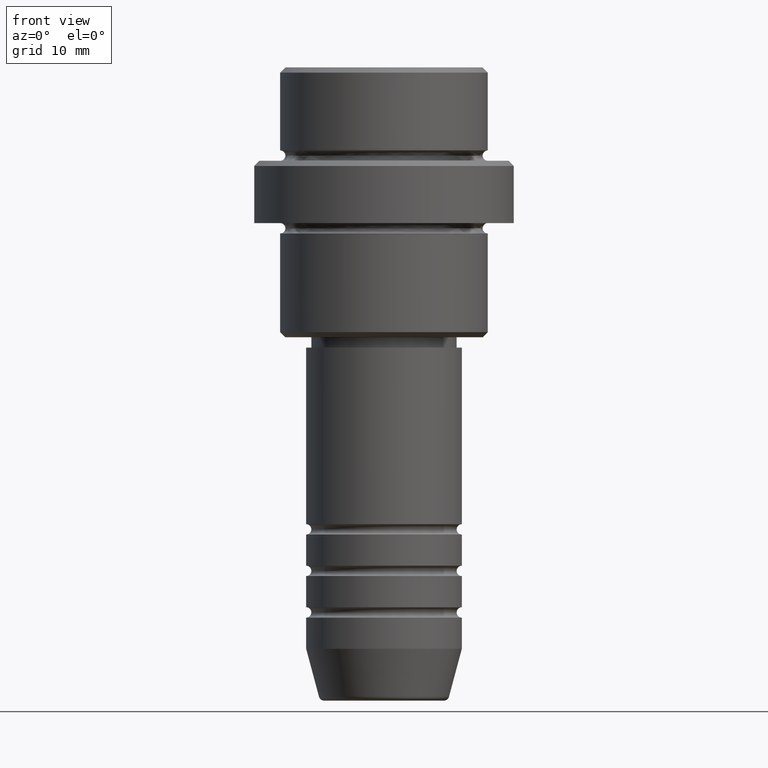
[diagram: clean part render]
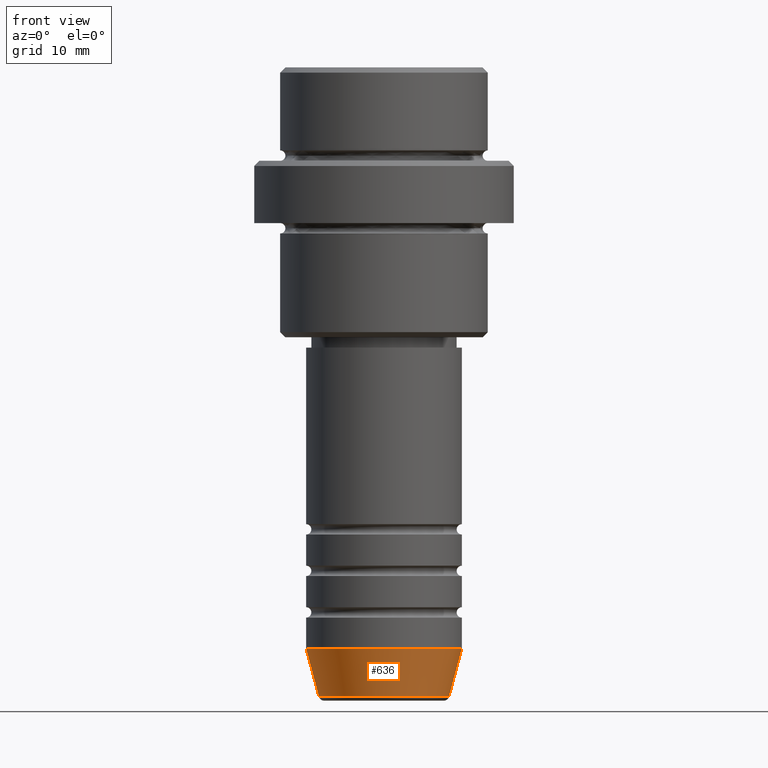
[diagram: same view with one face highlighted and labeled with its STEP entity id]
A machine part, front view. The second image highlights one B-rep face of the part: STEP entity #636.
In plain terms, the highlighted conical surface has half-angle 15 deg.
Its self-contained STEP definition (entity closure, byte-faithful):
#31 = DIRECTION ( 'NONE',  ( 1.000000000000000000, 0.000000000000000000, 0.000000000000000000 ) ) ;
#68 = CARTESIAN_POINT ( 'NONE',  ( 0.000000000000000000, 0.000000000000000000, -56.00000000000000711 ) ) ;
#124 = DIRECTION ( 'NONE',  ( 1.000000000000000000, 0.000000000000000000, 0.000000000000000000 ) ) ;
#140 = CARTESIAN_POINT ( 'NONE',  ( 7.500000000000000000, 0.000000000000000000, -56.00000000000000711 ) ) ;
#229 = CARTESIAN_POINT ( 'NONE',  ( 0.000000000000000000, 0.000000000000000000, -56.00000000000000711 ) ) ;
#236 = EDGE_CURVE ( 'NONE', #333, #776, #328, .T. ) ;
#265 = VECTOR ( 'NONE', #568, 1000.000000000000000 ) ;
#315 = ORIENTED_EDGE ( 'NONE', *, *, #236, .F. ) ;
#328 = LINE ( 'NONE', #641, #1177 ) ;
#333 = VERTEX_POINT ( 'NONE', #1373 ) ;
#351 = AXIS2_PLACEMENT_3D ( 'NONE', #1228, #895, #31 ) ;
#360 = EDGE_LOOP ( 'NONE', ( #315, #1313, #664, #1348 ) ) ;
#415 = CARTESIAN_POINT ( 'NONE',  ( 7.500000000000000000, 0.000000000000000000, -56.00000000000000711 ) ) ;
#435 = CONICAL_SURFACE ( 'NONE', #1179, 7.500000000000000000, 0.2617993877991500740 ) ;
#438 = AXIS2_PLACEMENT_3D ( 'NONE', #68, #510, #1380 ) ;
#478 = CIRCLE ( 'NONE', #351, 6.259553456999435106 ) ;
#510 = DIRECTION ( 'NONE',  ( -0.000000000000000000, -0.000000000000000000, 1.000000000000000000 ) ) ;
#568 = DIRECTION ( 'NONE',  ( 0.2588190451025213501, 0.000000000000000000, 0.9659258262890680902 ) ) ;
#636 = ADVANCED_FACE ( 'NONE', ( #1201 ), #435, .T. ) ;
#641 = CARTESIAN_POINT ( 'NONE',  ( -7.500000000000000000, 9.184850993605147944E-16, -56.00000000000000711 ) ) ;
#658 = DIRECTION ( 'NONE',  ( -0.000000000000000000, -0.000000000000000000, 1.000000000000000000 ) ) ;
#664 = ORIENTED_EDGE ( 'NONE', *, *, #784, .T. ) ;
#749 = CIRCLE ( 'NONE', #438, 7.500000000000000000 ) ;
#776 = VERTEX_POINT ( 'NONE', #818 ) ;
#784 = EDGE_CURVE ( 'NONE', #1216, #1001, #1306, .T. ) ;
#818 = CARTESIAN_POINT ( 'NONE',  ( -7.500000000000000000, 9.184850993605147944E-16, -56.00000000000000711 ) ) ;
#827 = EDGE_CURVE ( 'NONE', #776, #1001, #749, .T. ) ;
#895 = DIRECTION ( 'NONE',  ( -0.000000000000000000, -0.000000000000000000, 1.000000000000000000 ) ) ;
#1001 = VERTEX_POINT ( 'NONE', #415 ) ;
#1079 = DIRECTION ( 'NONE',  ( -0.2588190451025213501, 3.169619151431772337E-17, 0.9659258262890680902 ) ) ;
#1131 = CARTESIAN_POINT ( 'NONE',  ( 6.259553456999435106, 0.000000000000000000, -60.62940952255127058 ) ) ;
#1177 = VECTOR ( 'NONE', #1079, 1000.000000000000000 ) ;
#1179 = AXIS2_PLACEMENT_3D ( 'NONE', #229, #658, #124 ) ;
#1201 = FACE_OUTER_BOUND ( 'NONE', #360, .T. ) ;
#1216 = VERTEX_POINT ( 'NONE', #1131 ) ;
#1228 = CARTESIAN_POINT ( 'NONE',  ( 0.000000000000000000, 0.000000000000000000, -60.62940952255127058 ) ) ;
#1235 = EDGE_CURVE ( 'NONE', #333, #1216, #478, .T. ) ;
#1306 = LINE ( 'NONE', #140, #265 ) ;
#1313 = ORIENTED_EDGE ( 'NONE', *, *, #1235, .T. ) ;
#1348 = ORIENTED_EDGE ( 'NONE', *, *, #827, .F. ) ;
#1373 = CARTESIAN_POINT ( 'NONE',  ( -6.259553456999435106, 8.425296549405627514E-16, -60.62940952255127058 ) ) ;
#1380 = DIRECTION ( 'NONE',  ( 1.000000000000000000, 0.000000000000000000, 0.000000000000000000 ) ) ;